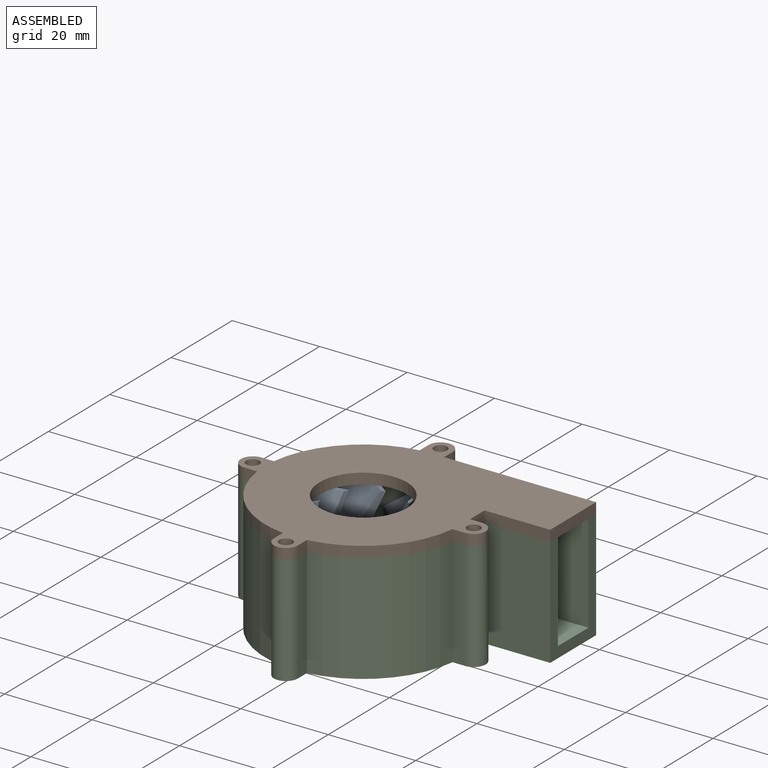
[diagram: assembled view]
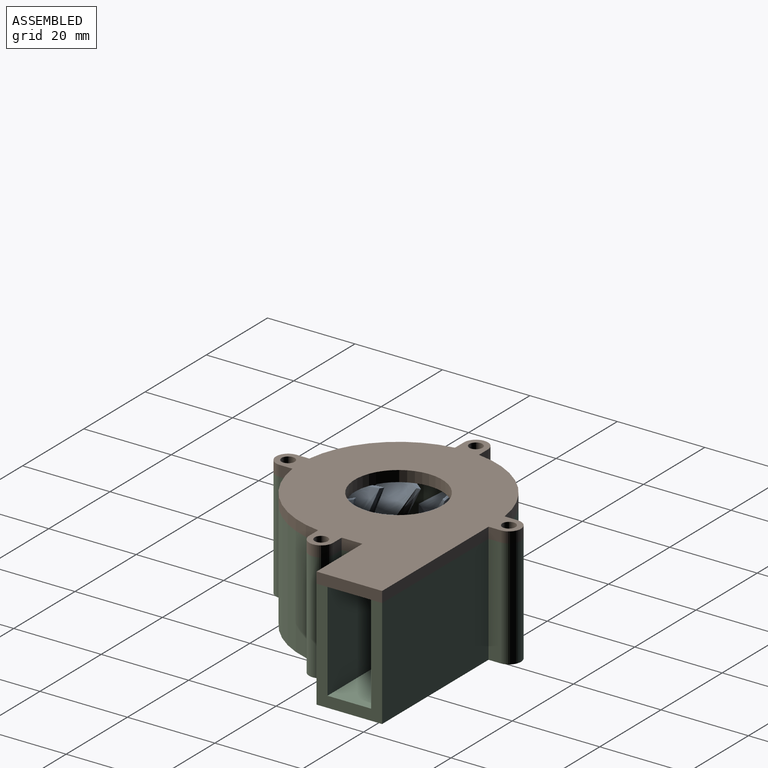
[diagram: assembled view, second angle]
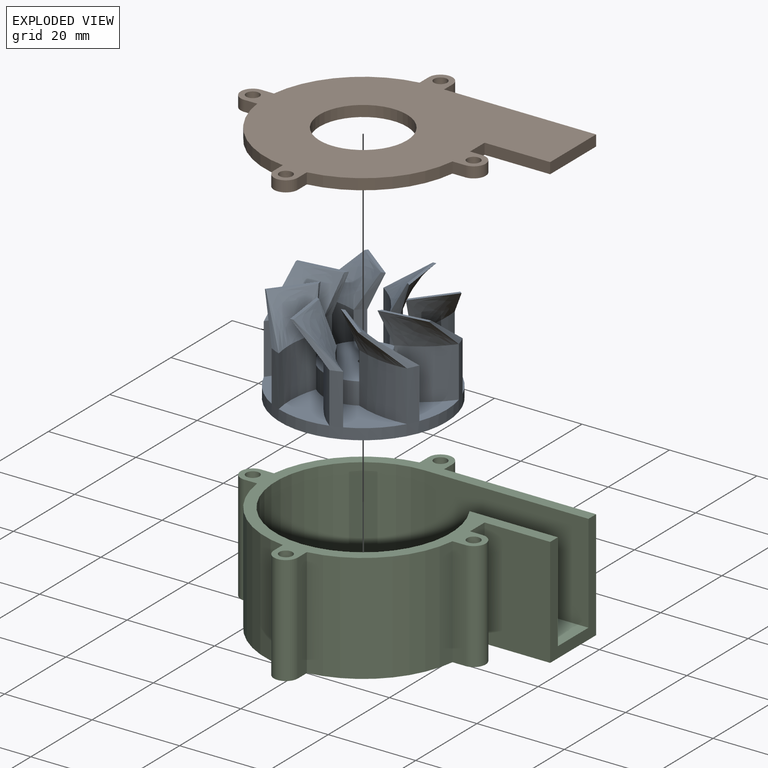
[diagram: exploded view]
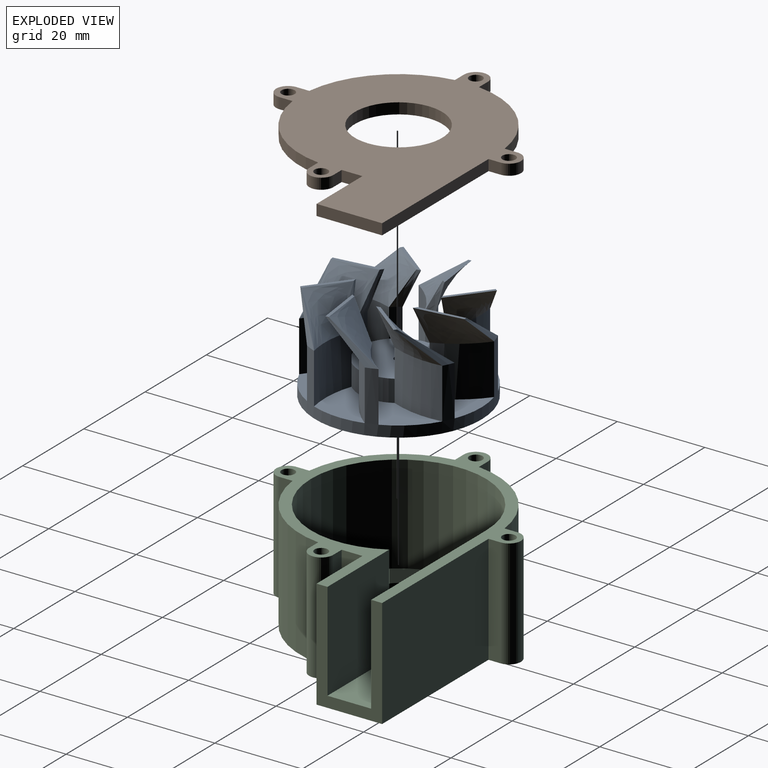
[diagram: exploded view, second angle]
ASSEMBLY  parts=3 mates=2
PART A: 88 faces, bbox 38x38x22 mm
  f0: cylinder r=9mm len=5mm, axis (0,0,-1), area 22.6mm2, adj f3,f19,f43,f47
  f1: plane 12.48x12.46mm, normal (0,0,1), area 84.3mm2, adj f14,f17,f26,f46
  f2: cylinder r=9mm len=5mm, axis (0,0,-1), area 22.6mm2, adj f5,f19,f40,f44
  f3: plane 16.31x9.64mm, normal (0,0,1), area 84.3mm2, adj f0,f17,f43,f47
  f4: cylinder r=9mm len=5mm, axis (0,0,-1), area 22.6mm2, adj f7,f19,f37,f41
  f5: plane 12.48x12.46mm, normal (0,0,1), area 84.3mm2, adj f2,f17,f40,f44
  f6: cylinder r=9mm len=5mm, axis (0,0,-1), area 22.6mm2, adj f9,f19,f34,f38
  f7: plane 16.31x9.64mm, normal (0,0,1), area 84.3mm2, adj f4,f17,f37,f41
  f8: cylinder r=9mm len=5mm, axis (0,0,-1), area 22.6mm2, adj f11,f19,f31,f35
  f9: plane 12.48x12.46mm, normal (0,0,1), area 84.3mm2, adj f6,f17,f34,f38
  f10: cylinder r=9mm len=5mm, axis (0,0,-1), area 22.6mm2, adj f13,f19,f28,f32
  f11: plane 16.31x9.64mm, normal (0,0,1), area 84.3mm2, adj f8,f17,f31,f35
  f12: cylinder r=9mm len=5mm, axis (0,0,-1), area 22.6mm2, adj f15,f19,f25,f29
  f13: plane 12.48x12.46mm, normal (0,0,1), area 84.3mm2, adj f10,f17,f28,f32
  f14: cylinder r=9mm len=5mm, axis (0,0,-1), area 22.6mm2, adj f1,f19,f26,f46
  f15: plane 16.31x9.64mm, normal (0,0,1), area 84.3mm2, adj f12,f17,f25,f29
  f16: cylinder r=7.5mm len=15mm, axis (0,0,-1), area 259.2mm2, adj f18,f20
  f17: cylinder r=19mm len=38mm, axis (0,0,-1), area 544.5mm2, adj f1,f3,f5,f7,f9,f11,f13,f15
  f18: plane 38x38mm, normal (0,0,-1), area 957.4mm2, adj f16,f17
  f19: plane 18x18mm, normal (0,0,1), area 251.3mm2, adj f0,f2,f4,f6,f8,f10,f12,f14
  f20: plane 15x15mm, normal (0,0,-1), area 113.1mm2, adj f16,f21
  f21: cylinder r=4.5mm len=9mm, axis (0,0,-1), area 155.5mm2, adj f20,f22
  f22: plane 9x9mm, normal (0,0,-1), area 60.5mm2, adj f21,f23
  f23: cylinder r=1mm len=7.5mm, axis (0,0,-1), area 47.1mm2, adj f19,f22
  f24: cylinder r=9mm len=6.5mm, axis (0,0,-1), area 16.5mm2, adj f19,f25,f26,f69
  f25: cylinder r=20.82mm len=11.5mm, axis (0,0,-1), area 130.3mm2, adj f12,f15,f17,f24,f72
  f26: cylinder r=23mm len=11.5mm, axis (0,0,-1), area 140.9mm2, adj f1,f14,f17,f24,f70
  f27: cylinder r=9mm len=6.5mm, axis (0,0,-1), area 16.5mm2, adj f19,f28,f29,f64
  f28: cylinder r=20.82mm len=11.5mm, axis (0,0,-1), area 130.3mm2, adj f10,f13,f17,f27,f67
  f29: cylinder r=23mm len=12mm, axis (0,0,-1), area 140.9mm2, adj f12,f15,f17,f27,f65
  f30: cylinder r=9mm len=6.5mm, axis (0,0,-1), area 16.5mm2, adj f19,f31,f32,f59
  f31: cylinder r=20.82mm len=11.5mm, axis (0,0,-1), area 130.3mm2, adj f8,f11,f17,f30,f62
  f32: cylinder r=23mm len=11.5mm, axis (0,0,-1), area 140.9mm2, adj f10,f13,f17,f30,f60
  f33: cylinder r=9mm len=6.5mm, axis (0,0,-1), area 16.5mm2, adj f19,f34,f35,f54
  f34: cylinder r=20.82mm len=11.5mm, axis (0,0,-1), area 130.3mm2, adj f6,f9,f17,f33,f57
  f35: cylinder r=23mm len=12mm, axis (0,0,-1), area 140.9mm2, adj f8,f11,f17,f33,f55
  f36: cylinder r=9mm len=6.5mm, axis (0,0,-1), area 16.5mm2, adj f19,f37,f38,f52
  f37: cylinder r=20.82mm len=11.5mm, axis (0,0,-1), area 130.3mm2, adj f4,f7,f17,f36,f51
  f38: cylinder r=23mm len=11.5mm, axis (0,0,-1), area 140.9mm2, adj f6,f9,f17,f36,f49
  f39: cylinder r=9mm len=6.5mm, axis (0,0,-1), area 16.5mm2, adj f19,f40,f41,f84
  f40: cylinder r=20.82mm len=11.5mm, axis (0,0,-1), area 130.3mm2, adj f2,f5,f17,f39,f87
  f41: cylinder r=23mm len=12mm, axis (0,0,-1), area 140.9mm2, adj f4,f7,f17,f39,f85
  f42: cylinder r=9mm len=6.5mm, axis (0,0,-1), area 16.5mm2, adj f19,f43,f44,f79
  f43: cylinder r=20.82mm len=11.5mm, axis (0,0,-1), area 130.3mm2, adj f0,f3,f17,f42,f82
  f44: cylinder r=23mm len=11.5mm, axis (0,0,-1), area 140.9mm2, adj f2,f5,f17,f42,f80
  f45: cylinder r=9mm len=6.5mm, axis (0,0,-1), area 16.5mm2, adj f19,f46,f47,f74
  f46: cylinder r=20.82mm len=11.5mm, axis (0,0,-1), area 130.3mm2, adj f1,f14,f17,f45,f77
  f47: cylinder r=23mm len=12mm, axis (0,0,-1), area 140.9mm2, adj f0,f3,f17,f45,f75
  f48: plane 10.84x2.09mm, normal (0,0,1), area 7.4mm2, adj f49,f50,f51,f52
  f49: bspline ~11.17x10.61mm, area 105.8mm2, adj f38,f48,f50,f52
  f50: bspline ~11.73x8mm, area 14.3mm2, adj f17,f48,f49,f51
  f51: bspline ~12.36x10.23mm, area 108.2mm2, adj f37,f48,f50,f52
  f52: bspline ~8x5.76mm, area 13.7mm2, adj f36,f48,f49,f51
  f53: plane 9.08x6.85mm, normal (0,0,1), area 7.4mm2, adj f54,f55,f56,f57
  f54: bspline ~8x5.39mm, area 13.7mm2, adj f33,f53,f55,f57
  f55: bspline ~15.4x8mm, area 105.8mm2, adj f35,f53,f54,f56
  f56: bspline ~8.69x8mm, area 14.3mm2, adj f17,f53,f55,f57
  f57: bspline ~15.63x8.89mm, area 108.2mm2, adj f34,f53,f54,f56
  f58: plane 10.84x2.09mm, normal (0,0,1), area 7.4mm2, adj f59,f60,f61,f62
  f59: bspline ~8x5.76mm, area 13.7mm2, adj f30,f58,f60,f62
  f60: bspline ~11.17x10.61mm, area 105.8mm2, adj f32,f58,f59,f61
  f61: bspline ~11.73x8mm, area 14.3mm2, adj f17,f58,f60,f62
  f62: bspline ~12.36x10.23mm, area 108.2mm2, adj f31,f58,f59,f61
  f63: plane 9.08x6.85mm, normal (0,0,1), area 7.4mm2, adj f64,f65,f66,f67
  f64: bspline ~8x5.39mm, area 13.7mm2, adj f27,f63,f65,f67
  f65: bspline ~15.4x8mm, area 105.8mm2, adj f29,f63,f64,f66
  f66: bspline ~8.69x8mm, area 14.3mm2, adj f17,f63,f65,f67
  f67: bspline ~15.63x8.89mm, area 108.2mm2, adj f28,f63,f64,f66
  f68: plane 10.84x2.09mm, normal (0,0,1), area 7.4mm2, adj f69,f70,f71,f72
  f69: bspline ~8x5.76mm, area 13.7mm2, adj f24,f68,f70,f72
  f70: bspline ~11.17x10.61mm, area 105.8mm2, adj f26,f68,f69,f71
  f71: bspline ~11.73x8mm, area 14.3mm2, adj f17,f68,f70,f72
  f72: bspline ~12.36x10.23mm, area 108.2mm2, adj f25,f68,f69,f71
  f73: plane 9.08x6.85mm, normal (0,0,1), area 7.4mm2, adj f74,f75,f76,f77
  f74: bspline ~8x5.39mm, area 13.7mm2, adj f45,f73,f75,f77
  f75: bspline ~15.4x8mm, area 105.8mm2, adj f47,f73,f74,f76
  f76: bspline ~8.69x8mm, area 14.3mm2, adj f17,f73,f75,f77
  f77: bspline ~15.63x8.89mm, area 108.2mm2, adj f46,f73,f74,f76
  f78: plane 10.84x2.09mm, normal (0,0,1), area 7.4mm2, adj f79,f80,f81,f82
  f79: bspline ~8x5.76mm, area 13.7mm2, adj f42,f78,f80,f82
  f80: bspline ~11.17x10.61mm, area 105.8mm2, adj f44,f78,f79,f81
  f81: bspline ~11.73x8mm, area 14.3mm2, adj f17,f78,f80,f82
  f82: bspline ~12.36x10.23mm, area 108.2mm2, adj f43,f78,f79,f81
  f83: plane 9.08x6.85mm, normal (0,0,1), area 7.4mm2, adj f84,f85,f86,f87
  f84: bspline ~8x5.39mm, area 13.7mm2, adj f39,f83,f85,f87
  f85: bspline ~15.4x8mm, area 105.8mm2, adj f41,f83,f84,f86
  f86: bspline ~8.69x8mm, area 14.3mm2, adj f17,f83,f85,f87
  f87: bspline ~15.63x8.89mm, area 108.2mm2, adj f40,f83,f84,f86
PART B: 26 faces, bbox 65.5x56x2.5 mm
  f0: plane 34.75x2.5mm, normal (0,1,0), area 86.9mm2, adj f1,f23,f24,f25
  f1: plane 2.59x2.5mm, normal (1,0,0), area 6.5mm2, adj f0,f2,f24,f25
  f2: cylinder r=2.75mm len=5.5mm, axis (0,0,-1), area 22.4mm2, adj f1,f3,f24,f25
  f3: plane 2.76x2.5mm, normal (-1,0,0), area 6.9mm2, adj f2,f4,f24,f25
  f4: cylinder r=22.5mm len=19.59mm, axis (0,0,-1), area 74.6mm2, adj f3,f5,f24,f25
  f5: plane 2.76x2.5mm, normal (0,1,0), area 6.9mm2, adj f4,f6,f24,f25
  f6: cylinder r=2.75mm len=5.5mm, axis (0,0,-1), area 22.4mm2, adj f5,f7,f24,f25
  f7: plane 2.76x2.5mm, normal (0,-1,0), area 6.9mm2, adj f6,f8,f24,f25
  f8: cylinder r=22.5mm len=19.59mm, axis (0,0,-1), area 74.6mm2, adj f7,f9,f24,f25
  f9: plane 2.76x2.5mm, normal (-1,0,0), area 6.9mm2, adj f8,f10,f24,f25
  f10: cylinder r=2.75mm len=5.5mm, axis (0,0,-1), area 22.4mm2, adj f9,f11,f24,f25
  f11: plane 2.76x2.5mm, normal (1,0,0), area 6.9mm2, adj f10,f12,f24,f25
  f12: cylinder r=22.5mm len=19.59mm, axis (0,0,-1), area 74.6mm2, adj f11,f13,f24,f25
  f13: plane 2.76x2.5mm, normal (0,-1,0), area 6.9mm2, adj f12,f14,f24,f25
  f14: cylinder r=2.75mm len=5.5mm, axis (0,0,-1), area 22.4mm2, adj f13,f15,f24,f25
  f15: plane 2.59x2.5mm, normal (0,1,0), area 6.5mm2, adj f14,f16,f24,f25
  f16: plane 4.75x2.5mm, normal (1,0,0), area 11.9mm2, adj f15,f17,f24,f25
  f17: plane 15x2.5mm, normal (0,-1,0), area 37.5mm2, adj f16,f23,f24,f25
  f18: cylinder r=1.5mm len=3mm, axis (0,0,-1), area 23.6mm2, adj f24,f25
  f19: cylinder r=1.5mm len=3mm, axis (0,0,-1), area 23.6mm2, adj f24,f25
  f20: cylinder r=1.5mm len=3mm, axis (0,0,-1), area 23.6mm2, adj f24,f25
  f21: cylinder r=1.5mm len=3mm, axis (0,0,-1), area 23.6mm2, adj f24,f25
  f22: cylinder r=10mm len=20mm, axis (0,0,-1), area 157.1mm2, adj f24,f25
  f23: plane 15x2.5mm, normal (1,0,0), area 37.5mm2, adj f0,f17,f24,f25
  f24: plane 65.5x56mm, normal (0,0,1), area 1690.5mm2, adj f0,f1,f2,f3,f4,f5,f6,f7
  f25: plane 65.5x56mm, normal (0,0,-1), area 1690.5mm2, adj f0,f1,f2,f3,f4,f5,f6,f7
PART C: 34 faces, bbox 65.5x56x25 mm
  f0: plane 25x2.59mm, normal (0,1,0), area 64.7mm2, adj f1,f25,f26,f27
  f1: plane 25x4.75mm, normal (1,0,0), area 118.9mm2, adj f0,f2,f26,f27
  f2: plane 25x15mm, normal (0,-1,0), area 375mm2, adj f1,f6,f26,f27
  f3: plane 22.5x20.18mm, normal (0,1,0), area 454mm2, adj f4,f6,f26,f28
  f4: cylinder r=20mm len=40mm, axis (0,0,-1), area 2356.2mm2, adj f3,f5,f26,f28
  f5: plane 37.5x22.5mm, normal (0,-1,0), area 843.8mm2, adj f4,f6,f26,f28
  f6: plane 25x15mm, normal (1,0,0), area 150mm2, adj f2,f3,f5,f7,f26,f27,f28
  f7: plane 34.75x25mm, normal (0,1,0), area 868.9mm2, adj f6,f8,f26,f27
  f8: plane 25x2.59mm, normal (1,0,0), area 64.7mm2, adj f7,f9,f26,f27
  f9: cylinder r=2.75mm len=25mm, axis (0,0,-1), area 224mm2, adj f8,f10,f26,f27
  f10: plane 25x2.76mm, normal (-1,0,0), area 68.9mm2, adj f9,f11,f26,f27
  f11: cylinder r=22.5mm len=25mm, axis (0,0,-1), area 746mm2, adj f10,f12,f26,f27
  f12: plane 25x2.76mm, normal (0,1,0), area 68.9mm2, adj f11,f13,f26,f27
  f13: cylinder r=2.75mm len=25mm, axis (0,0,-1), area 224mm2, adj f12,f14,f26,f27
  f14: plane 25x2.76mm, normal (0,-1,0), area 68.9mm2, adj f13,f15,f26,f27
  f15: cylinder r=22.5mm len=25mm, axis (0,0,-1), area 746mm2, adj f14,f16,f26,f27
  f16: plane 25x2.76mm, normal (-1,0,0), area 68.9mm2, adj f15,f17,f26,f27
  f17: cylinder r=2.75mm len=25mm, axis (0,0,-1), area 224mm2, adj f16,f18,f26,f27
  f18: plane 25x2.76mm, normal (1,0,0), area 68.9mm2, adj f17,f19,f26,f27
  f19: cylinder r=22.5mm len=25mm, axis (0,0,-1), area 746mm2, adj f18,f20,f26,f27
  f20: plane 25x2.76mm, normal (0,-1,0), area 68.9mm2, adj f19,f25,f26,f27
  f21: cylinder r=1.5mm len=25mm, axis (0,0,-1), area 235.6mm2, adj f26,f27
  f22: cylinder r=1.5mm len=25mm, axis (0,0,-1), area 235.6mm2, adj f26,f27
  f23: cylinder r=1.5mm len=25mm, axis (0,0,-1), area 235.6mm2, adj f26,f27
  f24: cylinder r=1.5mm len=25mm, axis (0,0,-1), area 235.6mm2, adj f26,f27
  f25: cylinder r=2.75mm len=25mm, axis (0,0,-1), area 224mm2, adj f0,f20,f26,f27
  f26: plane 65.5x56mm, normal (0,0,1), area 495.8mm2, adj f0,f1,f2,f3,f4,f5,f6,f7
  f27: plane 65.5x56mm, normal (0,0,-1), area 1985mm2, adj f0,f1,f2,f6,f7,f8,f9,f10
  f28: plane 57.5x40mm, normal (0,0,1), area 1354.9mm2, adj f3,f4,f5,f6,f30
  f29: cylinder r=5mm len=10mm, axis (0,0,-1), area 125.7mm2, adj f31,f33
  f30: cylinder r=7mm len=14mm, axis (0,0,-1), area 175.9mm2, adj f28,f31
  f31: plane 14x14mm, normal (0,0,1), area 75.4mm2, adj f29,f30
  f32: cylinder r=2.5mm len=5mm, axis (0,0,-1), area 39.3mm2, adj f27,f33
  f33: plane 10x10mm, normal (0,0,1), area 58.9mm2, adj f29,f32
PLACE A t=(0,0,2.5)mm
PLACE B t=(2.84,1.84,25)mm
PLACE C at identity fixed
MATE fastened C.f19 <-> B.f4  axis (0,0,-1) through (0,0,25)mm
MATE revolute C.f32 <-> A.f0  axis (0,0,1) through (0,0,2.5)mm
